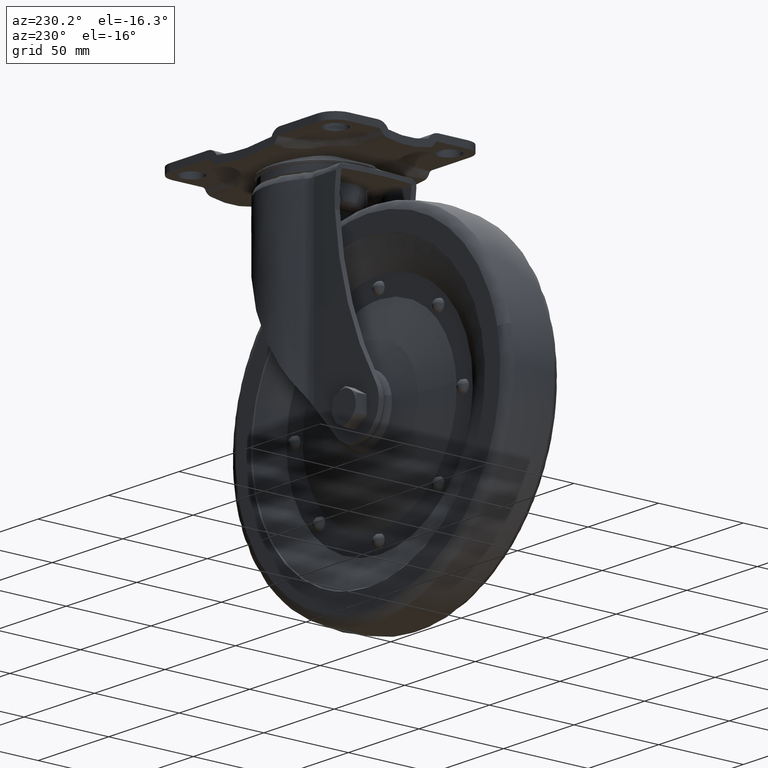
[diagram: clean part render]
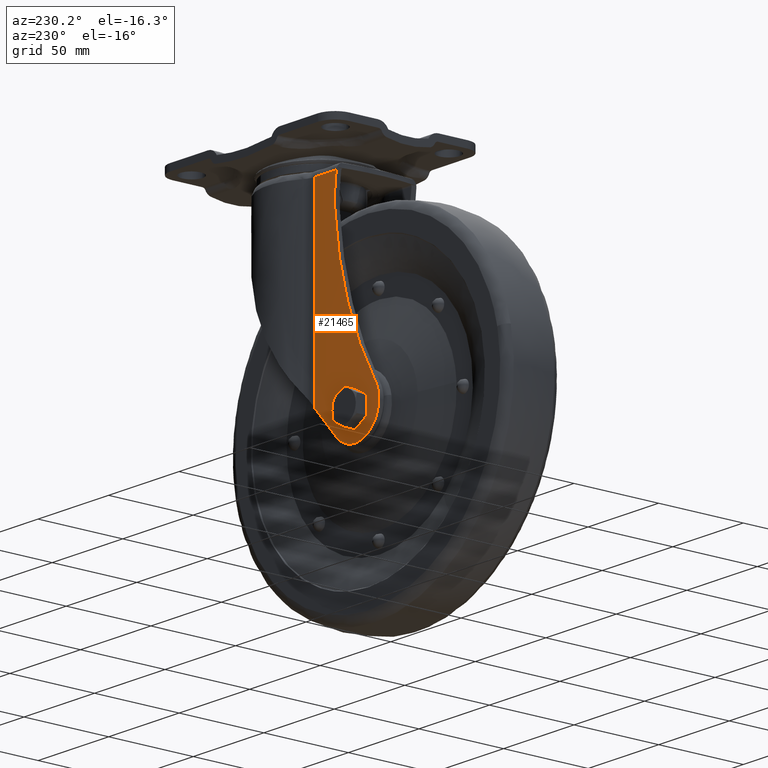
[diagram: same view with one face highlighted and labeled with its STEP entity id]
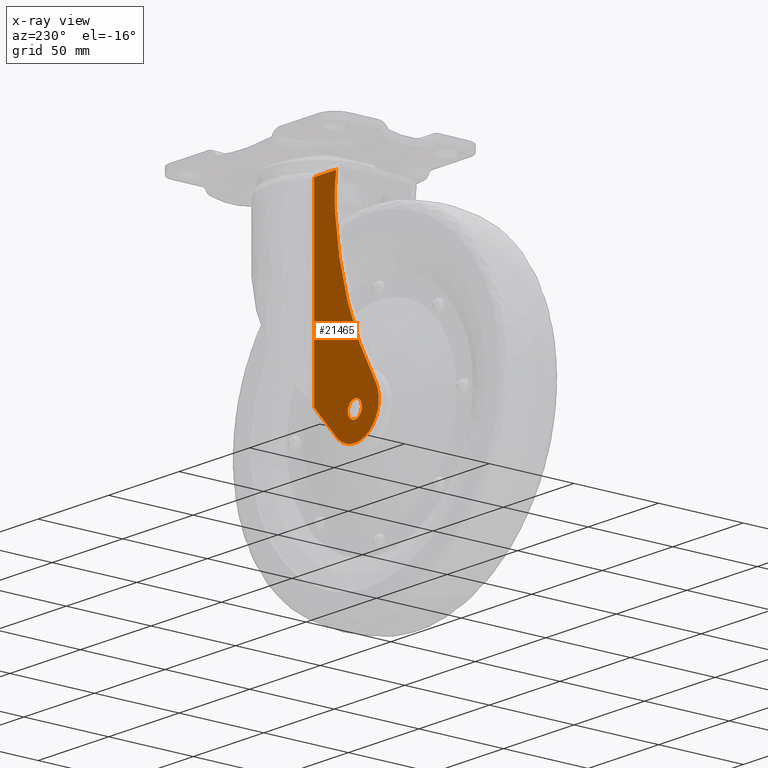
[diagram: x-ray of the same camera — body ghosted, the highlighted face saturated]
A machine part, auxiliary view. The second image highlights one B-rep face of the part: STEP entity #21465.
The next image is the same camera in x-ray: the body ghosted, the highlighted face saturated — about 0% of this face is hidden behind the body in this view.
In plain terms, the highlighted face is a freeform B-spline surface patch.
Its self-contained STEP definition (entity closure, byte-faithful):
#18979=CARTESIAN_POINT('',(-48.013035738068332,23.690364960353708,-135.249042958273610));
#18980=VERTEX_POINT('',#18979);
#18986=CARTESIAN_POINT('',(-52.999999999999943,23.695763635544150,-140.739233000000010));
#18987=VERTEX_POINT('',#18986);
#18988=CARTESIAN_POINT('',(-48.013035738068332,23.690364960353708,-135.249042958273610));
#18989=CARTESIAN_POINT('',(-47.997903832077782,23.690345260226088,-135.406214096163410));
#18990=CARTESIAN_POINT('',(-47.990193923090857,23.690335177202691,-135.564567059960500));
#18991=CARTESIAN_POINT('',(-47.989946047854772,23.690334854923730,-135.806707698941890));
#18992=CARTESIAN_POINT('',(-47.991914533557868,23.690337422473860,-135.889467277321300));
#18993=CARTESIAN_POINT('',(-47.999876140575907,23.690347800065862,-136.053829285871100));
#18994=CARTESIAN_POINT('',(-48.005867173905301,23.690355607364811,-136.135645604680290));
#18995=CARTESIAN_POINT('',(-48.029776672241240,23.690386733624042,-136.380017610522000));
#18996=CARTESIAN_POINT('',(-48.077458462788350,23.690448755897581,-136.702980151445900));
#18997=CARTESIAN_POINT('',(-48.156439642152222,23.690550830385391,-137.020264519787900));
#18998=CARTESIAN_POINT('',(-48.227638314558021,23.690642327285641,-137.256057569275300));
#18999=CARTESIAN_POINT('',(-48.253368602792960,23.690675319383960,-137.334292894982500));
#19000=CARTESIAN_POINT('',(-48.308907213882293,23.690746314276200,-137.490023730582410));
#19001=CARTESIAN_POINT('',(-48.338584257025957,23.690784148603740,-137.567130646455690));
#19002=CARTESIAN_POINT('',(-48.495611574250958,23.690983648923389,-137.947014014297390));
#19003=CARTESIAN_POINT('',(-48.649330891602702,23.691176961267711,-138.234951151998190));
#19004=CARTESIAN_POINT('',(-48.921391274076150,23.691511583735348,-138.643280368669590));
#19005=CARTESIAN_POINT('',(-49.019063757056003,23.691630639712258,-138.775461467686710));
#19006=CARTESIAN_POINT('',(-49.228745316488180,23.691883131459349,-139.031507372151590));
#19007=CARTESIAN_POINT('',(-49.339033550091962,23.692014488805910,-139.153276532265890));
#19008=CARTESIAN_POINT('',(-49.685674102601517,23.692421820155371,-139.500473003694400));
#19009=CARTESIAN_POINT('',(-49.937654741708293,23.692710938471109,-139.707958675338010));
#19010=CARTESIAN_POINT('',(-50.279178111091007,23.693089538726760,-139.936838603414290));
#19011=CARTESIAN_POINT('',(-50.348954263762558,23.693166272257209,-139.981155648049910));
#19012=CARTESIAN_POINT('',(-50.490648081912269,23.693320745040179,-140.066288227309400));
#19013=CARTESIAN_POINT('',(-50.562261670803203,23.693398155034359,-140.106930695785790));
#19014=CARTESIAN_POINT('',(-50.779355984268811,23.693630726525829,-140.223203301692590));
#19015=CARTESIAN_POINT('',(-51.074813836813362,23.693941722162741,-140.363180802305690));
#19016=CARTESIAN_POINT('',(-51.382047072071053,23.694252896082681,-140.473610472161310));
#19017=CARTESIAN_POINT('',(-51.616932762355411,23.694485851297781,-140.545239383043000));
#19018=CARTESIAN_POINT('',(-51.695972752268531,23.694563433079221,-140.567246869737200));
#19019=CARTESIAN_POINT('',(-51.855566209419230,23.694718386294578,-140.607464092693700));
#19020=CARTESIAN_POINT('',(-51.936297501171801,23.694795925812681,-140.625707488904400));
#19021=CARTESIAN_POINT('',(-52.341463983924641,23.695180703688560,-140.706752094552910));
#19022=CARTESIAN_POINT('',(-52.669015932696823,23.695477913751780,-140.739233084661090));
#19023=CARTESIAN_POINT('',(-52.999999999999943,23.695763635544150,-140.739233000000010));
#19024=B_SPLINE_CURVE_WITH_KNOTS('',3,(#18988,#18989,#18990,#18991,#18992,#18993,#18994,#18995,#18996,#18997,#18998,#18999,#19000,#19001,#19002,#19003,#19004,#19005,#19006,#19007,#19008,#19009,#19010,#19011,#19012,#19013,#19014,#19015,#19016,#19017,#19018,#19019,#19020,#19021,#19022,#19023),.UNSPECIFIED.,.F.,.U.,(4,2,2,2,1,2,2,2,2,2,2,2,2,2,1,2,2,2,4),(0.734906396524959,0.750000000000025,0.757812500000023,0.765625000000021,0.781250000000019,0.796875000000018,0.804687500000018,0.812500000000018,0.843750000000016,0.859375000000013,0.875000000000010,0.906250000000007,0.914062500000006,0.921875000000005,0.937500000000004,0.953125000000003,0.960937500000002,0.968750000000002,1.0),.UNSPECIFIED.);
#19025=EDGE_CURVE('',#18980,#18987,#19024,.T.);
#19027=CARTESIAN_POINT('',(-57.986964002919002,23.698974977866090,-136.209423016884190));
#19028=VERTEX_POINT('',#19027);
#19029=CARTESIAN_POINT('',(-52.999999999999943,23.695763635544150,-140.739233000000010));
#19030=CARTESIAN_POINT('',(-53.330983890284053,23.696049357336531,-140.739232898293490));
#19031=CARTESIAN_POINT('',(-53.656436733414509,23.696315862041480,-140.706755444248500));
#19032=CARTESIAN_POINT('',(-54.136658727584283,23.696689165903852,-140.611315552332710));
#19033=CARTESIAN_POINT('',(-54.295396652221342,23.696809181231789,-140.571657064004200));
#19034=CARTESIAN_POINT('',(-54.531453701812787,23.696982795375259,-140.500133044320190));
#19035=CARTESIAN_POINT('',(-54.609931176842949,23.697039693772670,-140.474233515065410));
#19036=CARTESIAN_POINT('',(-54.765587453754520,23.697150958013559,-140.418540468164710));
#19037=CARTESIAN_POINT('',(-54.842411410643066,23.697205073485708,-140.388881962350500));
#19038=CARTESIAN_POINT('',(-55.221612275875302,23.697468441724819,-140.231713553767010));
#19039=CARTESIAN_POINT('',(-55.509372455154697,23.697656195566051,-140.077828685090590));
#19040=CARTESIAN_POINT('',(-55.849746738142393,23.697866749364870,-139.850600162196400));
#19041=CARTESIAN_POINT('',(-55.916846596647382,23.697907645647501,-139.803395135298900));
#19042=CARTESIAN_POINT('',(-56.049065149082743,23.697987094648511,-139.705410195627110));
#19043=CARTESIAN_POINT('',(-56.114351671024117,23.698025744716428,-139.654489847652090));
#19044=CARTESIAN_POINT('',(-56.305854893226588,23.698137529071090,-139.497335408199890));
#19045=CARTESIAN_POINT('',(-56.427364504556621,23.698206313327969,-139.387082860378200));
#19046=CARTESIAN_POINT('',(-56.773992737092648,23.698397528146920,-139.040390106335310));
#19047=CARTESIAN_POINT('',(-56.981380212073461,23.698504951779601,-138.788165638530190));
#19048=CARTESIAN_POINT('',(-57.210285064674594,23.698618710978931,-138.445885751429300));
#19049=CARTESIAN_POINT('',(-57.254649307366172,23.698640480505048,-138.375868783545510));
#19050=CARTESIAN_POINT('',(-57.339481189460813,23.698681650483412,-138.234350872856000));
#19051=CARTESIAN_POINT('',(-57.379992277790642,23.698701074269611,-138.162808906799710));
#19052=CARTESIAN_POINT('',(-57.495916424593673,23.698756094241240,-137.945877318788800));
#19053=CARTESIAN_POINT('',(-57.635550859179588,23.698820808835428,-137.650497610516510));
#19054=CARTESIAN_POINT('',(-57.745774623014029,23.698870075659460,-137.343028322234890));
#19055=CARTESIAN_POINT('',(-57.817263259615430,23.698901649127389,-137.107831028522100));
#19056=CARTESIAN_POINT('',(-57.839226306699800,23.698911274757549,-137.028664685896390));
#19057=CARTESIAN_POINT('',(-57.879352625182420,23.698928764444300,-136.868770061059990));
#19058=CARTESIAN_POINT('',(-57.897541082896943,23.698936639213581,-136.787870787861010));
#19059=CARTESIAN_POINT('',(-57.946545456126678,23.698957764398511,-136.541609597175300));
#19060=CARTESIAN_POINT('',(-57.970952317064913,23.698968179498451,-136.375737453211600));
#19061=CARTESIAN_POINT('',(-57.986964002919002,23.698974977866090,-136.209423016884190));
#19062=B_SPLINE_CURVE_WITH_KNOTS('',3,(#19029,#19030,#19031,#19032,#19033,#19034,#19035,#19036,#19037,#19038,#19039,#19040,#19041,#19042,#19043,#19044,#19045,#19046,#19047,#19048,#19049,#19050,#19051,#19052,#19053,#19054,#19055,#19056,#19057,#19058,#19059,#19060,#19061),.UNSPECIFIED.,.F.,.U.,(4,2,2,2,2,2,2,2,2,2,2,2,1,2,2,2,4),(0.0,0.031250000000014,0.046875000000021,0.054687500000024,0.062500000000027,0.093750000000039,0.101562500000042,0.109375000000046,0.125000000000052,0.156250000000062,0.164062500000063,0.171875000000064,0.187500000000063,0.203125000000063,0.210937500000062,0.218750000000062,0.234737301698457),.UNSPECIFIED.);
#19063=EDGE_CURVE('',#18987,#19028,#19062,.T.);
#19134=CARTESIAN_POINT('',(-53.001769672634857,23.695765163071862,-130.719233312548990));
#19135=VERTEX_POINT('',#19134);
#19136=CARTESIAN_POINT('',(-57.986964002919002,23.698974977866090,-136.209423016884190));
#19137=CARTESIAN_POINT('',(-58.002250909490257,23.698981468106680,-136.050646652843600));
#19138=CARTESIAN_POINT('',(-58.009886393880713,23.698984662032611,-135.891467180317790));
#19139=CARTESIAN_POINT('',(-58.010058766462009,23.698984734482760,-135.568524671828410));
#19140=CARTESIAN_POINT('',(-58.002175982426827,23.698981411678879,-135.404739525800100));
#19141=CARTESIAN_POINT('',(-57.978033264239301,23.698971157749320,-135.158412815140710));
#19142=CARTESIAN_POINT('',(-57.967907932291510,23.698966849217690,-135.076147964316310));
#19143=CARTESIAN_POINT('',(-57.943760916674947,23.698956529325759,-134.913227760571690));
#19144=CARTESIAN_POINT('',(-57.929721439218142,23.698950510415969,-134.832343072322000));
#19145=CARTESIAN_POINT('',(-57.849857409831650,23.698916082863729,-134.430748930896410));
#19146=CARTESIAN_POINT('',(-57.755308580467620,23.698874912552728,-134.118446698351310));
#19147=CARTESIAN_POINT('',(-57.598587151366416,23.698803441827419,-133.739347713814310));
#19148=CARTESIAN_POINT('',(-57.565298805914928,23.698788132127088,-133.664096917775400));
#19149=CARTESIAN_POINT('',(-57.494756955007723,23.698755342637419,-133.514755876267000));
#19150=CARTESIAN_POINT('',(-57.457551514945372,23.698737883809581,-133.440797218181190));
#19151=CARTESIAN_POINT('',(-57.341225645177367,23.698682674636050,-133.223083108704800));
#19152=CARTESIAN_POINT('',(-57.257045309932323,23.698641933093651,-133.082694489915300));
#19153=CARTESIAN_POINT('',(-56.985092583458453,23.698506825559079,-132.675448554305600));
#19154=CARTESIAN_POINT('',(-56.778097947672180,23.698399760679301,-132.422375287041890));
#19155=CARTESIAN_POINT('',(-56.485985989936530,23.698238657953159,-132.129961987708210));
#19156=CARTESIAN_POINT('',(-56.426153682557462,23.698205207984529,-132.072971151703510));
#19157=CARTESIAN_POINT('',(-56.304341751178072,23.698136107997581,-131.962521894609690));
#19158=CARTESIAN_POINT('',(-56.242265824173963,23.698100405013591,-131.908966508698710));
#19159=CARTESIAN_POINT('',(-56.052579990137737,23.697989695737469,-131.753234129264090));
#19160=CARTESIAN_POINT('',(-55.790460055888900,23.697832494248299,-131.558724890980700));
#19161=CARTESIAN_POINT('',(-55.510077033862828,23.697654309385630,-131.390272520960510));
#19162=CARTESIAN_POINT('',(-55.220370485166221,23.697464487186430,-131.235122497398090));
#19163=CARTESIAN_POINT('',(-55.070187469539519,23.697363269065750,-131.163994981814310));
#19164=CARTESIAN_POINT('',(-54.614841397069348,23.697047021617308,-130.975249314600090));
#19165=CARTESIAN_POINT('',(-54.302552431883200,23.696817979966742,-130.880465794131600));
#19166=CARTESIAN_POINT('',(-53.901419998207423,23.696506335653069,-130.800314958373210));
#19167=CARTESIAN_POINT('',(-53.820650091436072,23.696442735567189,-130.786218508661790));
#19168=CARTESIAN_POINT('',(-53.658007039371427,23.696312910026059,-130.761951396830400));
#19169=CARTESIAN_POINT('',(-53.575986316789752,23.696246563352599,-130.751766635490610));
#19170=CARTESIAN_POINT('',(-53.329227136278973,23.696044264156910,-130.727329602884910));
#19171=CARTESIAN_POINT('',(-53.165245029377267,23.695906257625289,-130.719291015328510));
#19172=CARTESIAN_POINT('',(-53.001769672634857,23.695765163071862,-130.719233312548990));
#19173=B_SPLINE_CURVE_WITH_KNOTS('',3,(#19136,#19137,#19138,#19139,#19140,#19141,#19142,#19143,#19144,#19145,#19146,#19147,#19148,#19149,#19150,#19151,#19152,#19153,#19154,#19155,#19156,#19157,#19158,#19159,#19160,#19161,#19162,#19163,#19164,#19165,#19166,#19167,#19168,#19169,#19170,#19171,#19172),.UNSPECIFIED.,.F.,.U.,(4,2,2,2,2,2,2,2,2,2,2,2,1,2,2,2,2,2,4),(0.234737301698457,0.250000000000066,0.265625000000068,0.273437500000069,0.281250000000070,0.312500000000074,0.320312500000075,0.328125000000076,0.343750000000075,0.375000000000073,0.382812500000072,0.390625000000070,0.406250000000069,0.421875000000068,0.437500000000067,0.468750000000065,0.476562500000064,0.484375000000064,0.500000000000063),.UNSPECIFIED.);
#19174=EDGE_CURVE('',#19028,#19135,#19173,.T.);
#19176=CARTESIAN_POINT('',(-53.001769672634857,23.695765163071862,-130.719233312548990));
#19177=CARTESIAN_POINT('',(-52.674819150312111,23.695482973965010,-130.719117925391800));
#19178=CARTESIAN_POINT('',(-52.349881510907622,23.695188418659281,-130.750700862698890));
#19179=CARTESIAN_POINT('',(-51.946276716405237,23.694805466808930,-130.830607967666000));
#19180=CARTESIAN_POINT('',(-51.865471397055600,23.694727931228339,-130.848684852106400));
#19181=CARTESIAN_POINT('',(-51.705252727826164,23.694572506058719,-130.888723586275600));
#19182=CARTESIAN_POINT('',(-51.625949077211970,23.694494728583489,-130.910644420673800));
#19183=CARTESIAN_POINT('',(-51.390408453551593,23.694261305934472,-130.982001054763290));
#19184=CARTESIAN_POINT('',(-51.082663946188447,23.693949826534471,-131.092034441554290));
#19185=CARTESIAN_POINT('',(-50.787326468630980,23.693639157130431,-131.231349240378310));
#19186=CARTESIAN_POINT('',(-50.570531385177873,23.693407061830790,-131.346946591087290));
#19187=CARTESIAN_POINT('',(-50.499052406912547,23.693329849278829,-131.387334170572390));
#19188=CARTESIAN_POINT('',(-50.357693250324658,23.693175847807371,-131.471882604070800));
#19189=CARTESIAN_POINT('',(-50.287626594708698,23.693098850706669,-131.516173925630800));
#19190=CARTESIAN_POINT('',(-49.944539290819911,23.692718761972330,-131.745132591793210));
#19191=CARTESIAN_POINT('',(-49.692039735610251,23.692429168929749,-131.952450540243010));
#19192=CARTESIAN_POINT('',(-49.345255200872010,23.692021859333220,-132.298565031700690));
#19193=CARTESIAN_POINT('',(-49.235026445566021,23.691890631584538,-132.419835247251000));
#19194=CARTESIAN_POINT('',(-49.077962643722572,23.691701588891579,-132.610841694810890));
#19195=CARTESIAN_POINT('',(-49.026897625058872,23.691639762615321,-132.676170230621100));
#19196=CARTESIAN_POINT('',(-48.928624669532887,23.691520162189239,-132.808509051602190));
#19197=CARTESIAN_POINT('',(-48.881294984719830,23.691462242899231,-132.875654465591990));
#19198=CARTESIAN_POINT('',(-48.653522642511049,23.691182193489261,-133.216176267181510));
#19199=CARTESIAN_POINT('',(-48.499455392439877,23.690988488705418,-133.503800270160210));
#19200=CARTESIAN_POINT('',(-48.342133848759218,23.690788664366121,-133.882378581911010));
#19201=CARTESIAN_POINT('',(-48.312448489909158,23.690750828764379,-133.959055207525410));
#19202=CARTESIAN_POINT('',(-48.256702915889228,23.690679586118399,-134.114366709539410));
#19203=CARTESIAN_POINT('',(-48.230643832794229,23.690646179999579,-134.193045613415190));
#19204=CARTESIAN_POINT('',(-48.158781354098288,23.690553847582290,-134.429401077315990));
#19205=CARTESIAN_POINT('',(-48.118948752998840,23.690502374985179,-134.588257306102290));
#19206=CARTESIAN_POINT('',(-48.053932559979572,23.690418154051610,-134.913920678441400));
#19207=CARTESIAN_POINT('',(-48.029232141023670,23.690386047635752,-135.080804759005500));
#19208=CARTESIAN_POINT('',(-48.013035738068332,23.690364960353708,-135.249042958273610));
#19209=B_SPLINE_CURVE_WITH_KNOTS('',3,(#19176,#19177,#19178,#19179,#19180,#19181,#19182,#19183,#19184,#19185,#19186,#19187,#19188,#19189,#19190,#19191,#19192,#19193,#19194,#19195,#19196,#19197,#19198,#19199,#19200,#19201,#19202,#19203,#19204,#19205,#19206,#19207,#19208),.UNSPECIFIED.,.F.,.U.,(4,2,2,2,1,2,2,2,2,2,2,2,2,2,2,2,4),(0.500000000000063,0.531250000000061,0.539062500000061,0.546875000000061,0.562500000000059,0.578125000000058,0.585937500000057,0.593750000000055,0.625000000000049,0.640625000000046,0.648437500000045,0.656250000000043,0.687500000000035,0.695312500000034,0.703125000000034,0.718750000000031,0.734906396524959),.UNSPECIFIED.);
#19210=EDGE_CURVE('',#19135,#18980,#19209,.T.);
#20042=CARTESIAN_POINT('',(-24.087698548467049,23.634044442204051,-19.576584000000050));
#20043=VERTEX_POINT('',#20042);
#20044=CARTESIAN_POINT('',(-24.087698548467049,23.634044442203351,-128.493008445389190));
#20045=VERTEX_POINT('',#20044);
#20046=CARTESIAN_POINT('',(-24.087698548467049,23.634044442204051,-19.576584000000050));
#20047=CARTESIAN_POINT('',(-24.087698548467049,23.634044442203351,-128.493008445389190));
#20048=QUASI_UNIFORM_CURVE('',1,(#20046,#20047),.UNSPECIFIED.,.F.,.U.);
#20049=EDGE_CURVE('',#20043,#20045,#20048,.T.);
#21096=CARTESIAN_POINT('',(-40.588688177589248,23.678275483444100,-146.798199346368990));
#21097=VERTEX_POINT('',#21096);
#21103=CARTESIAN_POINT('',(-24.087698548467070,23.634044442203312,-128.493008445389190));
#21104=CARTESIAN_POINT('',(-26.706317467694468,23.642963895462291,-131.679111140687010));
#21105=CARTESIAN_POINT('',(-29.391208302382569,23.651204797636709,-134.797082003516890));
#21106=CARTESIAN_POINT('',(-34.891931343364007,23.666044655683461,-140.898407953184200));
#21107=CARTESIAN_POINT('',(-37.707764793482177,23.672643702735460,-143.881761761131710));
#21108=CARTESIAN_POINT('',(-40.588688177589333,23.678275483444239,-146.798199346368900));
#21109=B_SPLINE_CURVE_WITH_KNOTS('',3,(#21103,#21104,#21105,#21106,#21107,#21108),.UNSPECIFIED.,.F.,.U.,(4,2,4),(0.0,0.500000000000000,1.0),.UNSPECIFIED.);
#21110=EDGE_CURVE('',#20045,#21097,#21109,.T.);
#21189=CARTESIAN_POINT('',(-67.417475503704111,23.699068445285601,-125.637196850286000));
#21190=VERTEX_POINT('',#21189);
#21196=CARTESIAN_POINT('',(-40.588688177589248,23.678275483444100,-146.798199346368990));
#21197=CARTESIAN_POINT('',(-40.955145050234471,23.678991852633370,-147.169173667535290));
#21198=CARTESIAN_POINT('',(-41.719248700390523,23.680450170481979,-147.875315814658310));
#21199=CARTESIAN_POINT('',(-42.545229247639682,23.681939972114439,-148.510422363973110));
#21200=CARTESIAN_POINT('',(-43.188310776567832,23.683062189593841,-148.959663596350590));
#21201=CARTESIAN_POINT('',(-43.406610029713313,23.683437076690300,-149.104888940247290));
#21202=CARTESIAN_POINT('',(-43.740073794043212,23.683999782226081,-149.315821784861900));
#21203=CARTESIAN_POINT('',(-43.852377997975637,23.684187655358521,-149.385068294859710));
#21204=CARTESIAN_POINT('',(-44.078189761326954,23.684562022399160,-149.520741192528990));
#21205=CARTESIAN_POINT('',(-44.191663389523960,23.684748465359750,-149.587153009683900));
#21206=CARTESIAN_POINT('',(-44.761840819876547,23.685676675337749,-149.912162819443610));
#21207=CARTESIAN_POINT('',(-45.226954328677792,23.686406399747259,-150.149658556262210));
#21208=CARTESIAN_POINT('',(-46.174670941834343,23.687832929368071,-150.580763875868910));
#21209=CARTESIAN_POINT('',(-46.657275004961740,23.688529744887600,-150.774371052793700));
#21210=CARTESIAN_POINT('',(-47.639963721507911,23.689883781706431,-151.117721873296400));
#21211=CARTESIAN_POINT('',(-48.140047510475362,23.690541011670799,-151.267467685992810));
#21212=CARTESIAN_POINT('',(-48.776345471877882,23.691333788149610,-151.426563131885390));
#21213=CARTESIAN_POINT('',(-48.904165853080727,23.691490905664221,-151.456975050443990));
#21214=CARTESIAN_POINT('',(-49.160939571029559,23.691802165061681,-151.514955996862510));
#21215=CARTESIAN_POINT('',(-49.289996986068878,23.691956426101410,-151.542543588607400));
#21216=CARTESIAN_POINT('',(-49.677346446930002,23.692412799076699,-151.620695127299510));
#21217=CARTESIAN_POINT('',(-49.936218167747413,23.692709002645810,-151.666751132746300));
#21218=CARTESIAN_POINT('',(-50.714730933047548,23.693573066044440,-151.786960480961400));
#21219=CARTESIAN_POINT('',(-51.236265643414242,23.694116375318810,-151.843192415054290));
#21220=CARTESIAN_POINT('',(-52.022354782519301,23.694880673566072,-151.891699957927190));
#21221=CARTESIAN_POINT('',(-52.285016659333742,23.695126996323388,-151.901886425178790));
#21222=CARTESIAN_POINT('',(-52.679966463864602,23.695483625606201,-151.908109307570900));
#21223=CARTESIAN_POINT('',(-52.811914981047799,23.695600478838418,-151.908671568514590));
#21224=CARTESIAN_POINT('',(-53.075328418343013,23.695829175884011,-151.906764394724490));
#21225=CARTESIAN_POINT('',(-53.206777713893452,23.695941012432471,-151.904299236601190));
#21226=CARTESIAN_POINT('',(-53.862750394229217,23.696487779867859,-151.884493792712500));
#21227=CARTESIAN_POINT('',(-54.383460618691252,23.696885477908349,-151.844762884200090));
#21228=CARTESIAN_POINT('',(-55.416950107641533,23.697604910302640,-151.718731005351090));
#21229=CARTESIAN_POINT('',(-55.929728940564729,23.697926639724511,-151.632427500890600));
#21230=CARTESIAN_POINT('',(-56.947358992063819,23.698497346359371,-151.413270087179400));
#21231=CARTESIAN_POINT('',(-57.452210605870761,23.698746319383229,-151.280418498669290));
#21232=CARTESIAN_POINT('',(-58.078198403777733,23.699014003973399,-151.084543878361100));
#21233=CARTESIAN_POINT('',(-58.203141615757701,23.699065364204639,-151.043875443304100));
#21234=CARTESIAN_POINT('',(-58.452514171253277,23.699163779739710,-150.959521174519210));
#21235=CARTESIAN_POINT('',(-58.577057101537527,23.699210871951170,-150.915790655510700));
#21236=CARTESIAN_POINT('',(-58.948072004094797,23.699345125613771,-150.780707167638010));
#21237=CARTESIAN_POINT('',(-59.192450053762627,23.699425486189320,-150.685300944420500));
#21238=CARTESIAN_POINT('',(-59.916851763895380,23.699640901250909,-150.383325097230800));
#21239=CARTESIAN_POINT('',(-60.388160925947993,23.699750311394151,-150.161030668225100));
#21240=CARTESIAN_POINT('',(-61.307942116573273,23.699909427466981,-149.675233534529010));
#21241=CARTESIAN_POINT('',(-61.756413620857913,23.699959121492942,-149.411729883788610));
#21242=CARTESIAN_POINT('',(-62.630360531358733,23.700006898577080,-148.843227466698210));
#21243=CARTESIAN_POINT('',(-63.055837827577932,23.700004971289189,-148.538232110743790));
#21244=CARTESIAN_POINT('',(-63.572845854369511,23.699975210313831,-148.130212542364600));
#21245=CARTESIAN_POINT('',(-63.675461565609787,23.699967888518000,-148.047294338372610));
#21246=CARTESIAN_POINT('',(-63.878145663055463,23.699950742094540,-147.879635623469710));
#21247=CARTESIAN_POINT('',(-64.178749881638339,23.699921246620590,-147.625101350799300));
#21248=CARTESIAN_POINT('',(-64.469194287292254,23.699881232788851,-147.361522811389110));
#21249=CARTESIAN_POINT('',(-65.036734297754890,23.699789215899809,-146.822482628005300));
#21250=CARTESIAN_POINT('',(-65.757911584813797,23.699634624176841,-146.072122242549910));
#21251=CARTESIAN_POINT('',(-66.408744817218633,23.699436194339921,-145.259141564801210));
#21252=CARTESIAN_POINT('',(-66.870109733337770,23.699277884416571,-144.625584290059810));
#21253=CARTESIAN_POINT('',(-67.019431191619660,23.699223528631851,-144.410422143340100));
#21254=CARTESIAN_POINT('',(-67.308990413051106,23.699112764492678,-143.972011541825110));
#21255=CARTESIAN_POINT('',(-67.449517454712336,23.699056226707590,-143.748239971072710));
#21256=CARTESIAN_POINT('',(-67.853442073713580,23.698886795640739,-143.070966097052210));
#21257=CARTESIAN_POINT('',(-68.100224818763337,23.698773792161031,-142.610201161429590));
#21258=CARTESIAN_POINT('',(-68.550035609478272,23.698555799385179,-141.670685419177000));
#21259=CARTESIAN_POINT('',(-68.753060801003841,23.698450797806519,-141.191933439322700));
#21260=CARTESIAN_POINT('',(-69.115483246821100,23.698255739312319,-140.216495714215310));
#21261=CARTESIAN_POINT('',(-69.274882211682026,23.698165674332770,-139.719810672112600));
#21262=CARTESIAN_POINT('',(-69.480539130571017,23.698046347328908,-138.961036583185690));
#21263=CARTESIAN_POINT('',(-69.543553981552847,23.698009167398780,-138.705614432811100));
#21264=CARTESIAN_POINT('',(-69.657999953693206,23.697940862821440,-138.190932961355200));
#21265=CARTESIAN_POINT('',(-69.709086393189196,23.697909946448000,-137.933268920213290));
#21266=CARTESIAN_POINT('',(-69.844297730820870,23.697827424501039,-137.159325934606610));
#21267=CARTESIAN_POINT('',(-69.910411911208740,23.697786079813770,-136.642098091174600));
#21268=CARTESIAN_POINT('',(-69.995561064157599,23.697732622684700,-135.605162024922010));
#21269=CARTESIAN_POINT('',(-70.014594460496312,23.697720507430478,-135.085453719057910));
#21270=CARTESIAN_POINT('',(-70.005371879514229,23.697726343652651,-134.043545655281210));
#21271=CARTESIAN_POINT('',(-69.977119266339400,23.697744296617969,-133.521346074609200));
#21272=CARTESIAN_POINT('',(-69.911367740379816,23.697785411172148,-132.866993083466890));
#21273=CARTESIAN_POINT('',(-69.896670358234971,23.697794578877719,-132.735872283526590));
#21274=CARTESIAN_POINT('',(-69.864315477800673,23.697814685164332,-132.474439735203500));
#21275=CARTESIAN_POINT('',(-69.811366833439308,23.697847484707530,-132.083583505354600));
#21276=CARTESIAN_POINT('',(-69.745314779464294,23.697887941074971,-131.696562449681610));
#21277=CARTESIAN_POINT('',(-69.596016625966442,23.697978290873309,-130.927552781044400));
#21278=CARTESIAN_POINT('',(-69.351171794958901,23.698123978822789,-129.915605868118090));
#21279=CARTESIAN_POINT('',(-69.015946269323081,23.698310613030660,-128.930112045735000));
#21280=CARTESIAN_POINT('',(-68.730230970647042,23.698461653026062,-128.201029654617290));
#21281=CARTESIAN_POINT('',(-68.629267774739915,23.698513834535081,-127.959677744124800));
#21282=CARTESIAN_POINT('',(-68.469102995814112,23.698594235733381,-127.600202088554790));
#21283=CARTESIAN_POINT('',(-68.414260812037327,23.698621390304378,-127.480802412040210));
#21284=CARTESIAN_POINT('',(-68.301639057309998,23.698676295519121,-127.242862788607700));
#21285=CARTESIAN_POINT('',(-68.243800388239407,23.698704073166699,-127.124211857330390));
#21286=CARTESIAN_POINT('',(-67.948660671123449,23.698843463931400,-126.536021251516900));
#21287=CARTESIAN_POINT('',(-67.692695158270311,23.698957035843708,-126.079705610921910));
#21288=CARTESIAN_POINT('',(-67.417475503704054,23.699068445286080,-125.637196850286100));
#21289=B_SPLINE_CURVE_WITH_KNOTS('',3,(#21196,#21197,#21198,#21199,#21200,#21201,#21202,#21203,#21204,#21205,#21206,#21207,#21208,#21209,#21210,#21211,#21212,#21213,#21214,#21215,#21216,#21217,#21218,#21219,#21220,#21221,#21222,#21223,#21224,#21225,#21226,#21227,#21228,#21229,#21230,#21231,#21232,#21233,#21234,#21235,#21236,#21237,#21238,#21239,#21240,#21241,#21242,#21243,#21244,#21245,#21246,#21247,#21248,#21249,#21250,#21251,#21252,#21253,#21254,#21255,#21256,#21257,#21258,#21259,#21260,#21261,#21262,#21263,#21264,#21265,#21266,#21267,#21268,#21269,#21270,#21271,#21272,#21273,#21274,#21275,#21276,#21277,#21278,#21279,#21280,#21281,#21282,#21283,#21284,#21285,#21286,#21287,#21288),.UNSPECIFIED.,.F.,.U.,(4,1,2,2,2,2,2,2,2,2,2,2,2,2,2,2,2,2,2,2,2,2,2,2,2,2,1,2,1,2,2,2,2,2,2,2,2,2,2,2,2,1,2,1,2,2,2,2,4),(0.0,0.031250000000003,0.062500000000006,0.078125000000008,0.085937500000009,0.093750000000009,0.125000000000011,0.156250000000013,0.187500000000015,0.195312500000015,0.203125000000015,0.218750000000014,0.250000000000014,0.265625000000013,0.273437500000013,0.281250000000013,0.312500000000011,0.343750000000009,0.375000000000006,0.382812500000006,0.390625000000005,0.406250000000004,0.437500000000001,0.468749999999998,0.499999999999995,0.507812499999994,0.515624999999994,0.531249999999995,0.562499999999997,0.593749999999999,0.609375000000000,0.625000000000001,0.656250000000001,0.687500000000001,0.718750000000001,0.734375000000000,0.749999999999999,0.781249999999997,0.812499999999996,0.843749999999994,0.851562499999993,0.859374999999993,0.874999999999994,0.906249999999994,0.937499999999994,0.953124999999995,0.960937499999995,0.968749999999996,1.0),.UNSPECIFIED.);
#21290=EDGE_CURVE('',#21097,#21190,#21289,.T.);
#21312=CARTESIAN_POINT('',(-38.805185497823302,23.674649114889601,-37.978198601557402));
#21313=VERTEX_POINT('',#21312);
#21319=CARTESIAN_POINT('',(-38.805185497823302,23.674649114889601,-37.978198601557402));
#21320=CARTESIAN_POINT('',(-39.094829028867110,23.675260759942301,-41.853711321132252));
#21321=CARTESIAN_POINT('',(-39.500354026050111,23.676107746258300,-45.708217681320683));
#21322=CARTESIAN_POINT('',(-40.540058182655869,23.678192199413939,-53.375781245868737));
#21323=CARTESIAN_POINT('',(-41.174240693436829,23.679429693087059,-57.188837842706491));
#21324=CARTESIAN_POINT('',(-42.670668402229843,23.682179445343522,-64.773609134144735));
#21325=CARTESIAN_POINT('',(-43.532912448232508,23.683691796188519,-68.545324037546962));
#21326=CARTESIAN_POINT('',(-45.487340613698969,23.686838331489771,-76.047071666645763));
#21327=CARTESIAN_POINT('',(-46.579518928945902,23.688472681647180,-79.777105444446192));
#21328=CARTESIAN_POINT('',(-48.393578540581139,23.690870099875490,-85.340289595077806));
#21329=CARTESIAN_POINT('',(-49.027584418090889,23.691659885163531,-87.189369482646029));
#21330=CARTESIAN_POINT('',(-49.857252415412169,23.692617532202341,-89.493983093722889));
#21331=CARTESIAN_POINT('',(-50.025041720098912,23.692807567226058,-89.954554985465435));
#21332=CARTESIAN_POINT('',(-50.363758012533133,23.693183544393509,-90.873436917764792));
#21333=CARTESIAN_POINT('',(-50.876752574345034,23.693741618703740,-92.248964288960977));
#21334=CARTESIAN_POINT('',(-51.404452321475631,23.694279975709520,-93.616136432744625));
#21335=CARTESIAN_POINT('',(-53.195908029969729,23.696021390075611,-98.154935669452513));
#21336=CARTESIAN_POINT('',(-54.732839764575417,23.697245536743949,-101.727016376322890));
#21337=CARTESIAN_POINT('',(-58.010103958357192,23.699102823000000,-108.755609030493100));
#21338=CARTESIAN_POINT('',(-59.750441899145052,23.699736077562790,-112.212117863256490));
#21339=CARTESIAN_POINT('',(-63.432689655921678,23.700132286253279,-119.010605846074500));
#21340=CARTESIAN_POINT('',(-65.374600809537824,23.699895404868020,-122.352584236138400));
#21341=CARTESIAN_POINT('',(-67.417475503703869,23.699068445286070,-125.637196850286200));
#21342=B_SPLINE_CURVE_WITH_KNOTS('',3,(#21319,#21320,#21321,#21322,#21323,#21324,#21325,#21326,#21327,#21328,#21329,#21330,#21331,#21332,#21333,#21334,#21335,#21336,#21337,#21338,#21339,#21340,#21341),.UNSPECIFIED.,.F.,.U.,(4,2,2,2,2,2,2,1,2,2,2,4),(0.0,0.124999999999999,0.249999999999999,0.374999999999998,0.499999999999997,0.562499999999997,0.578124999999997,0.593749999999997,0.624999999999997,0.749999999999998,0.874999999999999,1.0),.UNSPECIFIED.);
#21343=EDGE_CURVE('',#21313,#21190,#21342,.T.);
#21384=CARTESIAN_POINT('',(-39.763329787285798,23.676632071990898,-19.679929543523901));
#21385=VERTEX_POINT('',#21384);
#21395=CARTESIAN_POINT('',(-39.763329787285791,23.676632071990891,-19.679929543523912));
#21396=CARTESIAN_POINT('',(-39.501979971239066,23.676102199570099,-21.179415364888929));
#21397=CARTESIAN_POINT('',(-39.285529064740821,23.675654610075430,-22.686051818637939));
#21398=CARTESIAN_POINT('',(-38.942671530352989,23.674939907538111,-25.713665247021179));
#21399=CARTESIAN_POINT('',(-38.816263578794668,23.674672790174970,-27.234642010846379));
#21400=CARTESIAN_POINT('',(-38.654717454637471,23.674330660286291,-30.291131236355710));
#21401=CARTESIAN_POINT('',(-38.619576039336053,23.674255651235448,-31.826643181607569));
#21402=CARTESIAN_POINT('',(-38.634112434589127,23.674286570419369,-33.755344003908633));
#21403=CARTESIAN_POINT('',(-38.639948484341197,23.674298983803101,-34.141264482817917));
#21404=CARTESIAN_POINT('',(-38.657423225109177,23.674336126035751,-34.911475979227212));
#21405=CARTESIAN_POINT('',(-38.692344838741462,23.674410318002661,-36.065213436510142));
#21406=CARTESIAN_POINT('',(-38.753210179341671,23.674539357747161,-37.214245048576352));
#21407=CARTESIAN_POINT('',(-38.805185497823288,23.674649114890052,-37.978198601557423));
#21408=B_SPLINE_CURVE_WITH_KNOTS('',3,(#21395,#21396,#21397,#21398,#21399,#21400,#21401,#21402,#21403,#21404,#21405,#21406,#21407),.UNSPECIFIED.,.F.,.U.,(4,2,2,2,2,1,4),(0.0,0.249999999999999,0.499999999999998,0.749999999999998,0.812499999999998,0.874999999999998,1.0),.UNSPECIFIED.);
#21409=EDGE_CURVE('',#21385,#21313,#21408,.T.);
#21416=CARTESIAN_POINT('',(-21.794220440415216,23.626001152523372,-16.269115986595054));
#21417=CARTESIAN_POINT('',(-21.794220440415216,23.626001152523372,-155.265459249939880));
#21418=CARTESIAN_POINT('',(-47.045939718526789,23.717106505444818,-16.269115986595050));
#21419=CARTESIAN_POINT('',(-47.045939718526789,23.717106505444818,-155.265459249939850));
#21420=CARTESIAN_POINT('',(-72.297814562158251,23.696045464277343,-16.269115986595054));
#21421=CARTESIAN_POINT('',(-72.297814562158251,23.696045464277343,-155.265459249939910));
#21429=(BOUNDED_SURFACE()B_SPLINE_SURFACE(1,2,((#21416,#21418,#21420),(#21417,#21419,#21421)),.UNSPECIFIED.,.F.,.F.,.U.)B_SPLINE_SURFACE_WITH_KNOTS((2,2),(3,3),(0.0,138.996343263344810),(11.457266247749329,61.962209307670591),.UNSPECIFIED.)GEOMETRIC_REPRESENTATION_ITEM()RATIONAL_B_SPLINE_SURFACE(((0.999157890848103,0.999136771901884,0.999120581697187),(0.999157890848103,0.999136771901884,0.999120581697187)))REPRESENTATION_ITEM('')SURFACE());
#21430=ORIENTED_EDGE('',*,*,#21409,.F.);
#21431=CARTESIAN_POINT('',(-37.758186602659350,23.672389942716102,-19.576584000000050));
#21432=VERTEX_POINT('',#21431);
#21433=CARTESIAN_POINT('',(-39.763329787285748,23.676632071990898,-19.679929543523901));
#21434=CARTESIAN_POINT('',(-39.094948933820909,23.675276966461460,-19.645474623578071));
#21435=CARTESIAN_POINT('',(-38.426567872376239,23.673862923428381,-19.611026005129240));
#21436=CARTESIAN_POINT('',(-37.758186602659350,23.672389942715551,-19.576584000000050));
#21437=B_SPLINE_CURVE_WITH_KNOTS('',3,(#21433,#21434,#21435,#21436),.UNSPECIFIED.,.F.,.U.,(4,4),(4.869601E-017,0.002007809126357),.UNSPECIFIED.);
#21438=EDGE_CURVE('',#21385,#21432,#21437,.T.);
#21439=ORIENTED_EDGE('',*,*,#21438,.T.);
#21440=CARTESIAN_POINT('',(-37.758186602659350,23.672389942716102,-19.576584000000050));
#21441=CARTESIAN_POINT('',(-30.922931048573393,23.657326385350782,-19.576584000000050));
#21442=CARTESIAN_POINT('',(-24.087698548464989,23.634044442204068,-19.576584000000050));
#21450=(BOUNDED_CURVE()B_SPLINE_CURVE(2,(#21440,#21441,#21442),.UNSPECIFIED.,.F.,.U.)CURVE()GEOMETRIC_REPRESENTATION_ITEM()QUASI_UNIFORM_CURVE()RATIONAL_B_SPLINE_CURVE((1.0,0.999999819293034,1.0))REPRESENTATION_ITEM(''));
#21451=EDGE_CURVE('',#21432,#20043,#21450,.T.);
#21452=ORIENTED_EDGE('',*,*,#21451,.T.);
#21453=ORIENTED_EDGE('',*,*,#20049,.T.);
#21454=ORIENTED_EDGE('',*,*,#21110,.T.);
#21455=ORIENTED_EDGE('',*,*,#21290,.T.);
#21456=ORIENTED_EDGE('',*,*,#21343,.F.);
#21457=EDGE_LOOP('',(#21430,#21439,#21452,#21453,#21454,#21455,#21456));
#21458=FACE_OUTER_BOUND('',#21457,.T.);
#21459=ORIENTED_EDGE('',*,*,#19210,.F.);
#21460=ORIENTED_EDGE('',*,*,#19174,.F.);
#21461=ORIENTED_EDGE('',*,*,#19063,.F.);
#21462=ORIENTED_EDGE('',*,*,#19025,.F.);
#21463=EDGE_LOOP('',(#21459,#21460,#21461,#21462));
#21464=FACE_BOUND('',#21463,.T.);
#21465=ADVANCED_FACE('',(#21458,#21464),#21429,.T.);